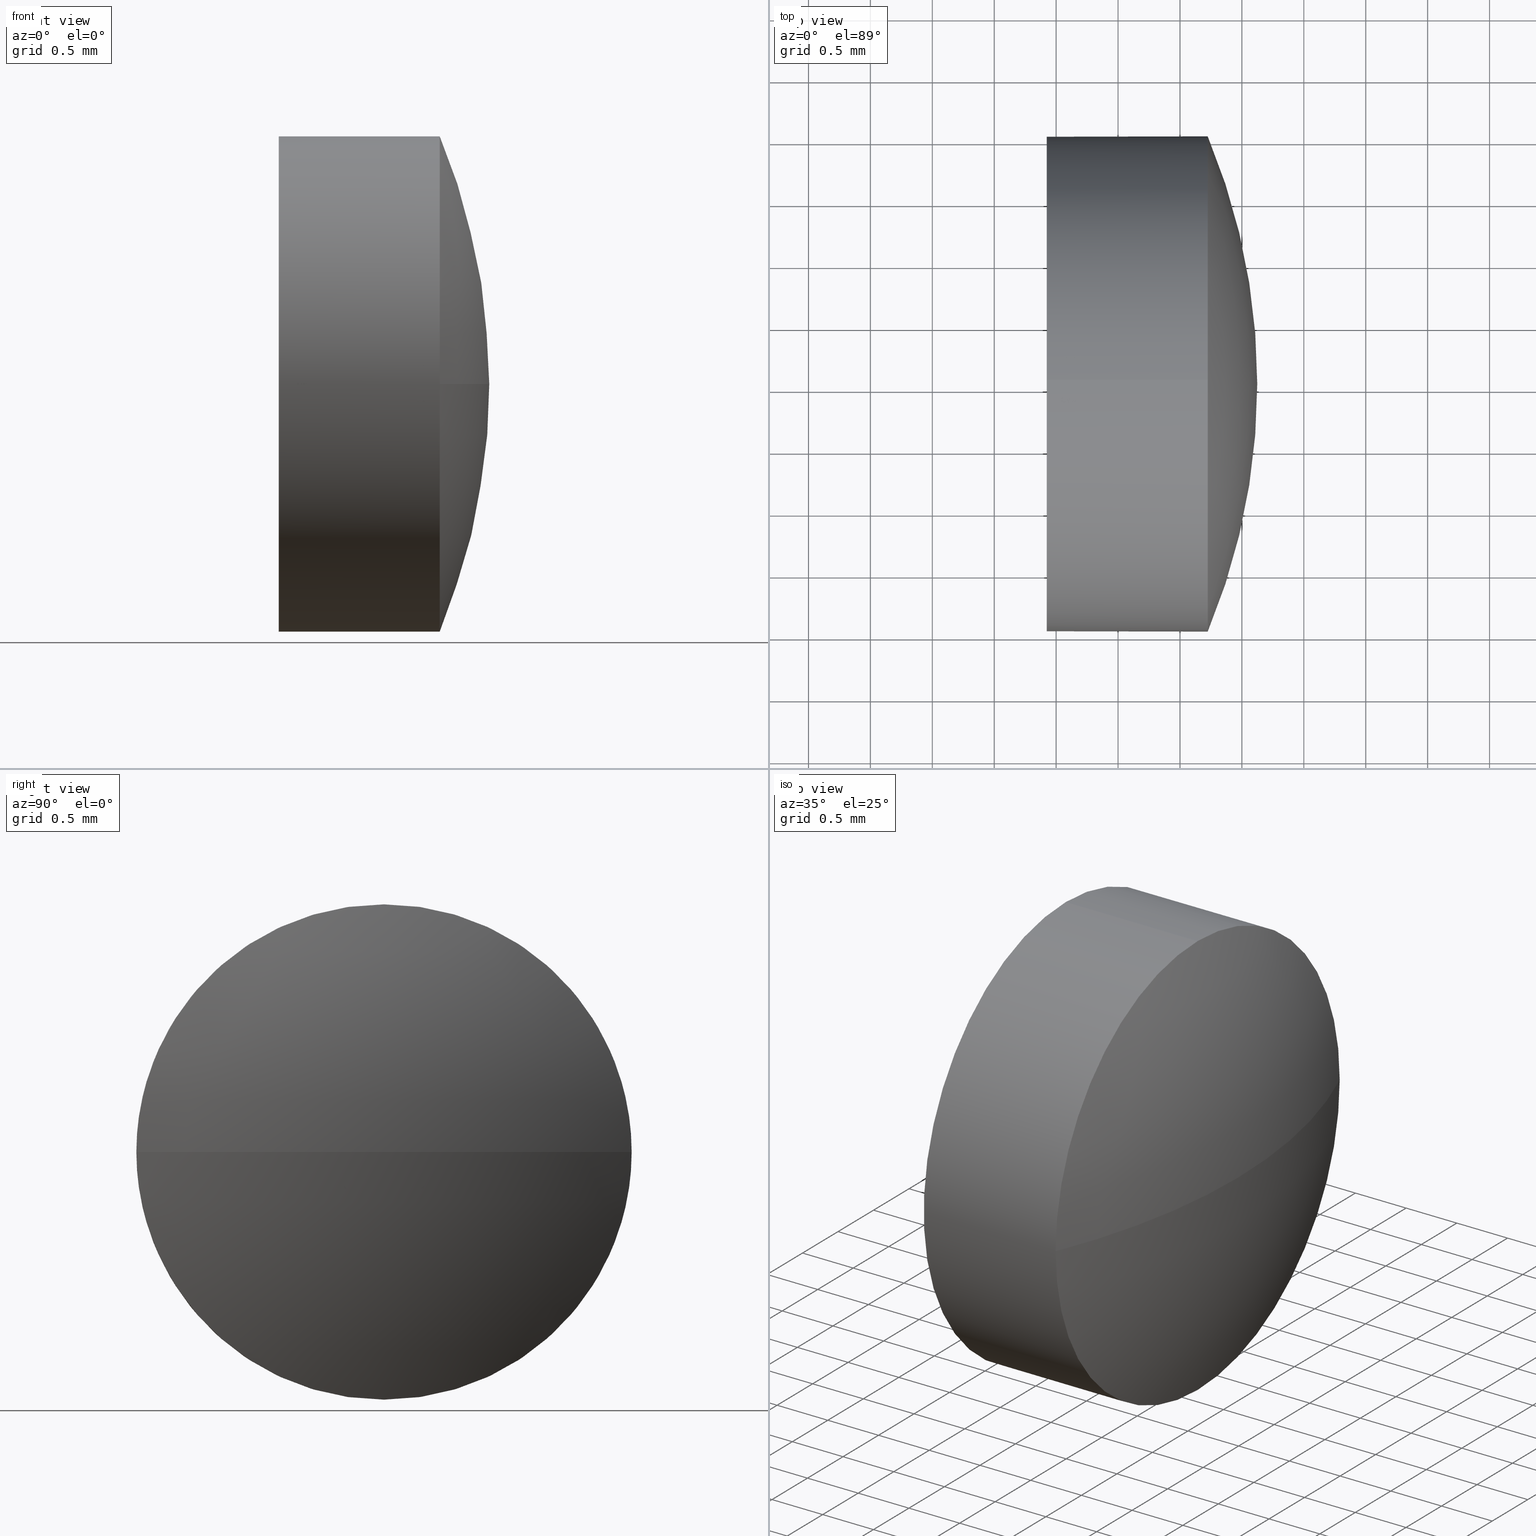
[diagram: canonical four-view strip — front | top / right | iso, engineering-drawing reading convention]
A machine part, canonical four-view strip (front | top / right | iso — engineering-drawing reading convention). The complete STEP part file that produces these views, byte-faithful:
ISO-10303-21;
HEADER;
FILE_DESCRIPTION (( 'STEP AP214' ),
    '1' );
FILE_NAME ('100004.STEP',
    '2019-04-19T01:17:19',
    ( '' ),
    ( '' ),
    'SwSTEP 2.0',
    'SolidWorks 2016',
    '' );
FILE_SCHEMA (( 'AUTOMOTIVE_DESIGN' ));
ENDSEC;

DATA;
#1 = AXIS2_PLACEMENT_3D ( 'NONE', #6, #10, #181 ) ;
#2 = ORIENTED_EDGE ( 'NONE', *, *, #26, .T. ) ;
#3 = PLANE ( 'NONE',  #116 ) ;
#4 = AXIS2_PLACEMENT_3D ( 'NONE', #65, #98, #161 ) ;
#5 = PRODUCT_DEFINITION ( 'δ֪', '', #17, #142 ) ;
#6 = CARTESIAN_POINT ( 'NONE',  ( 671.7241212514443300, 145.5310956935278200, 0.0000000000000000000 ) ) ;
#7 = CIRCLE ( 'NONE', #4, 5.199999999999898900 ) ;
#8 = DIRECTION ( 'NONE',  ( 0.0000000000000000000, 1.000000000000000000, 0.0000000000000000000 ) ) ;
#9 =( LENGTH_UNIT ( ) NAMED_UNIT ( * ) SI_UNIT ( .MILLI., .METRE. ) );
#10 = DIRECTION ( 'NONE',  ( -1.000000000000000000, -0.0000000000000000000, -0.0000000000000000000 ) ) ;
#11 = AXIS2_PLACEMENT_3D ( 'NONE', #130, #43, #118 ) ;
#12 = DIRECTION ( 'NONE',  ( -1.000000000000000000, -0.0000000000000000000, -0.0000000000000000000 ) ) ;
#13 =( GEOMETRIC_REPRESENTATION_CONTEXT ( 3 ) GLOBAL_UNCERTAINTY_ASSIGNED_CONTEXT ( ( #163 ) ) GLOBAL_UNIT_ASSIGNED_CONTEXT ( ( #50, #80, #184 ) ) REPRESENTATION_CONTEXT ( 'NONE', 'WORKASPACE' ) );
#14 = SURFACE_STYLE_FILL_AREA ( #62 ) ;
#15 = AXIS2_PLACEMENT_3D ( 'NONE', #165, #151, #8 ) ;
#16 = EDGE_LOOP ( 'NONE', ( #159, #2, #107, #23 ) ) ;
#17 = PRODUCT_DEFINITION_FORMATION_WITH_SPECIFIED_SOURCE ( '�κ�', '', #169, .NOT_KNOWN. ) ;
#18 = DIRECTION ( 'NONE',  ( -1.000000000000000000, -0.0000000000000000000, -0.0000000000000000000 ) ) ;
#19 = SPHERICAL_SURFACE ( 'NONE', #171, 5.199999999999887400 ) ;
#20 =( NAMED_UNIT ( * ) SI_UNIT ( $, .STERADIAN. ) SOLID_ANGLE_UNIT ( ) );
#21 = CARTESIAN_POINT ( 'NONE',  ( 671.7241212514443300, 143.5310956935279000, -2.449293598294682300E-016 ) ) ;
#22 = DIRECTION ( 'NONE',  ( -1.000000000000000000, -0.0000000000000000000, -0.0000000000000000000 ) ) ;
#23 = ORIENTED_EDGE ( 'NONE', *, *, #147, .F. ) ;
#24 = DIRECTION ( 'NONE',  ( -1.000000000000000000, -0.0000000000000000000, -0.0000000000000000000 ) ) ;
#25 = DIRECTION ( 'NONE',  ( 1.000000000000000000, 0.0000000000000000000, 0.0000000000000000000 ) ) ;
#26 = EDGE_CURVE ( 'NONE', #135, #71, #66, .T. ) ;
#27 = AXIS2_PLACEMENT_3D ( 'NONE', #146, #33, #141 ) ;
#28 = EDGE_LOOP ( 'NONE', ( #52, #170, #125, #172, #30 ) ) ;
#29 = PRESENTATION_STYLE_ASSIGNMENT (( #134 ) ) ;
#30 = ORIENTED_EDGE ( 'NONE', *, *, #57, .F. ) ;
#31 = CARTESIAN_POINT ( 'NONE',  ( 670.2757176332884200, 145.5310956935278200, -2.000000000000001800 ) ) ;
#32 = ORIENTED_EDGE ( 'NONE', *, *, #73, .T. ) ;
#33 = DIRECTION ( 'NONE',  ( -1.000000000000000000, -0.0000000000000000000, -0.0000000000000000000 ) ) ;
#34 = ADVANCED_BREP_SHAPE_REPRESENTATION ( '100004', ( #105, #53 ), #87 ) ;
#35 = CARTESIAN_POINT ( 'NONE',  ( 671.7241212514443300, 145.5310956935278200, 2.000000000000001800 ) ) ;
#36 = ADVANCED_FACE ( 'NONE', ( #183 ), #3, .F. ) ;
#37 = FILL_AREA_STYLE ('',( #51 ) ) ;
#38 = SURFACE_SIDE_STYLE ('',( #140 ) ) ;
#39 = ORIENTED_EDGE ( 'NONE', *, *, #101, .T. ) ;
#40 = CIRCLE ( 'NONE', #155, 2.000000000000001800 ) ;
#41 = SPHERICAL_SURFACE ( 'NONE', #15, 5.199999999999887400 ) ;
#42 = DIRECTION ( 'NONE',  ( -0.0000000000000000000, 0.0000000000000000000, 1.000000000000000000 ) ) ;
#43 = DIRECTION ( 'NONE',  ( -1.000000000000000000, -0.0000000000000000000, -0.0000000000000000000 ) ) ;
#44 = AXIS2_PLACEMENT_3D ( 'NONE', #110, #24, #160 ) ;
#45 = CIRCLE ( 'NONE', #185, 2.000000000000001800 ) ;
#46 = CARTESIAN_POINT ( 'NONE',  ( 670.4241212514442600, 147.5310956935278200, 0.0000000000000000000 ) ) ;
#47 = CARTESIAN_POINT ( 'NONE',  ( 670.4241212514442600, 145.5310956935278200, -2.000000000000001800 ) ) ;
#48 =( NAMED_UNIT ( * ) SI_UNIT ( $, .STERADIAN. ) SOLID_ANGLE_UNIT ( ) );
#49 = COLOUR_RGB ( '',1.000000000000000000, 1.000000000000000000, 1.000000000000000000 ) ;
#50 =( LENGTH_UNIT ( ) NAMED_UNIT ( * ) SI_UNIT ( .MILLI., .METRE. ) );
#51 = FILL_AREA_STYLE_COLOUR ( '', #106 ) ;
#52 = ORIENTED_EDGE ( 'NONE', *, *, #73, .F. ) ;
#53 = AXIS2_PLACEMENT_3D ( 'NONE', #119, #114, #25 ) ;
#54 = ADVANCED_FACE ( 'NONE', ( #127 ), #19, .T. ) ;
#55 = LINE ( 'NONE', #31, #56 ) ;
#56 = VECTOR ( 'NONE', #18, 1000.000000000000000 ) ;
#57 = EDGE_CURVE ( 'NONE', #76, #59, #97, .T. ) ;
#58 = DIRECTION ( 'NONE',  ( 0.0000000000000000000, 0.0000000000000000000, -1.000000000000000000 ) ) ;
#59 = VERTEX_POINT ( 'NONE', #179 ) ;
#60 = DIRECTION ( 'NONE',  ( 1.000000000000000000, 0.0000000000000000000, 0.0000000000000000000 ) ) ;
#61 = EDGE_CURVE ( 'NONE', #59, #76, #45, .T. ) ;
#62 = FILL_AREA_STYLE ('',( #175 ) ) ;
#63 =( NAMED_UNIT ( * ) PLANE_ANGLE_UNIT ( ) SI_UNIT ( $, .RADIAN. ) );
#64 = CIRCLE ( 'NONE', #1, 2.000000000000001800 ) ;
#65 = CARTESIAN_POINT ( 'NONE',  ( 666.9241212514443800, 145.5310956935278700, 0.0000000000000000000 ) ) ;
#66 = CIRCLE ( 'NONE', #139, 5.199999999999871400 ) ;
#67 = SURFACE_STYLE_USAGE ( .BOTH. , #162 ) ;
#68 = APPLICATION_PROTOCOL_DEFINITION ( 'draft international standard', 'automotive_design', 1998, #153 ) ;
#69 = EDGE_LOOP ( 'NONE', ( #88, #117 ) ) ;
#70 = UNCERTAINTY_MEASURE_WITH_UNIT (LENGTH_MEASURE( 1.000000000000000100E-005 ), #137, 'distance_accuracy_value', 'NONE');
#71 = VERTEX_POINT ( 'NONE', #128 ) ;
#72 = ORIENTED_EDGE ( 'NONE', *, *, #26, .F. ) ;
#73 = EDGE_CURVE ( 'NONE', #108, #76, #55, .T. ) ;
#74 = CIRCLE ( 'NONE', #126, 2.000000000000001800 ) ;
#75 = DIRECTION ( 'NONE',  ( 1.000000000000000000, 0.0000000000000000000, 0.0000000000000000000 ) ) ;
#76 = VERTEX_POINT ( 'NONE', #47 ) ;
#77 = DIRECTION ( 'NONE',  ( -1.000000000000000000, -0.0000000000000000000, -0.0000000000000000000 ) ) ;
#78 = DIRECTION ( 'NONE',  ( 0.0000000000000000000, 1.000000000000000000, 0.0000000000000000000 ) ) ;
#79 =( NAMED_UNIT ( * ) PLANE_ANGLE_UNIT ( ) SI_UNIT ( $, .RADIAN. ) );
#80 =( NAMED_UNIT ( * ) PLANE_ANGLE_UNIT ( ) SI_UNIT ( $, .RADIAN. ) );
#81 = CLOSED_SHELL ( 'NONE', ( #99, #90, #133, #36, #54 ) ) ;
#82 = PRODUCT_CONTEXT ( 'NONE', #149, 'mechanical' ) ;
#83 = PRESENTATION_STYLE_ASSIGNMENT (( #67 ) ) ;
#84 = EDGE_LOOP ( 'NONE', ( #72, #39, #174, #113 ) ) ;
#85 = EDGE_CURVE ( 'NONE', #156, #59, #92, .T. ) ;
#86 = PRODUCT_DEFINITION_SHAPE ( 'NONE', 'NONE',  #5 ) ;
#87 =( GEOMETRIC_REPRESENTATION_CONTEXT ( 3 ) GLOBAL_UNCERTAINTY_ASSIGNED_CONTEXT ( ( #70 ) ) GLOBAL_UNIT_ASSIGNED_CONTEXT ( ( #137, #79, #48 ) ) REPRESENTATION_CONTEXT ( 'NONE', 'WORKASPACE' ) );
#88 = ORIENTED_EDGE ( 'NONE', *, *, #61, .T. ) ;
#89 = DIRECTION ( 'NONE',  ( -1.000000000000000000, -0.0000000000000000000, -0.0000000000000000000 ) ) ;
#90 = ADVANCED_FACE ( 'NONE', ( #124 ), #120, .T. ) ;
#91 = CARTESIAN_POINT ( 'NONE',  ( 670.2757176332884200, 145.5310956935278200, 2.000000000000001800 ) ) ;
#92 = LINE ( 'NONE', #91, #154 ) ;
#93 = CARTESIAN_POINT ( 'NONE',  ( 671.7241212514443300, 145.5310956935278200, 0.0000000000000000000 ) ) ;
#94 = APPLICATION_PROTOCOL_DEFINITION ( 'draft international standard', 'automotive_design', 1998, #149 ) ;
#95 = DIRECTION ( 'NONE',  ( 0.0000000000000000000, 0.0000000000000000000, 1.000000000000000000 ) ) ;
#96 = CARTESIAN_POINT ( 'NONE',  ( 671.7241212514443300, 145.5310956935278200, 0.0000000000000000000 ) ) ;
#97 = CIRCLE ( 'NONE', #11, 2.000000000000001800 ) ;
#98 = DIRECTION ( 'NONE',  ( 0.0000000000000000000, 1.224646799147353200E-016, -1.000000000000000000 ) ) ;
#99 = ADVANCED_FACE ( 'NONE', ( #157 ), #41, .T. ) ;
#100 = ORIENTED_EDGE ( 'NONE', *, *, #61, .F. ) ;
#101 = EDGE_CURVE ( 'NONE', #135, #178, #7, .T. ) ;
#102 = ORIENTED_EDGE ( 'NONE', *, *, #85, .F. ) ;
#103 = PRESENTATION_LAYER_ASSIGNMENT (  '', '', ( #166 ) ) ;
#104 = EDGE_LOOP ( 'NONE', ( #138, #129, #32, #100, #102 ) ) ;
#105 = MANIFOLD_SOLID_BREP ( '��ת1', #81 ) ;
#106 = COLOUR_RGB ( '',1.000000000000000000, 1.000000000000000000, 1.000000000000000000 ) ;
#107 = ORIENTED_EDGE ( 'NONE', *, *, #109, .F. ) ;
#108 = VERTEX_POINT ( 'NONE', #111 ) ;
#109 = EDGE_CURVE ( 'NONE', #156, #71, #186, .T. ) ;
#110 = CARTESIAN_POINT ( 'NONE',  ( 671.7241212514443300, 145.5310956935278200, 0.0000000000000000000 ) ) ;
#111 = CARTESIAN_POINT ( 'NONE',  ( 671.7241212514443300, 145.5310956935278200, -2.000000000000001800 ) ) ;
#112 = STYLED_ITEM ( 'NONE', ( #83 ), #105 ) ;
#113 = ORIENTED_EDGE ( 'NONE', *, *, #168, .F. ) ;
#114 = DIRECTION ( 'NONE',  ( 0.0000000000000000000, 0.0000000000000000000, 1.000000000000000000 ) ) ;
#115 = PRODUCT_RELATED_PRODUCT_CATEGORY ( 'part', '', ( #169 ) ) ;
#116 = AXIS2_PLACEMENT_3D ( 'NONE', #46, #75, #58 ) ;
#117 = ORIENTED_EDGE ( 'NONE', *, *, #57, .T. ) ;
#118 = DIRECTION ( 'NONE',  ( 0.0000000000000000000, 0.0000000000000000000, 1.000000000000000000 ) ) ;
#119 = CARTESIAN_POINT ( 'NONE',  ( 0.0000000000000000000, 0.0000000000000000000, 0.0000000000000000000 ) ) ;
#120 = CYLINDRICAL_SURFACE ( 'NONE', #27, 2.000000000000001800 ) ;
#121 = CARTESIAN_POINT ( 'NONE',  ( 672.1241212514443100, 145.5310956935278700, 0.0000000000000000000 ) ) ;
#122 = DIRECTION ( 'NONE',  ( -1.000000000000000000, -0.0000000000000000000, -0.0000000000000000000 ) ) ;
#123 = DIRECTION ( 'NONE',  ( 0.0000000000000000000, 0.0000000000000000000, 1.000000000000000000 ) ) ;
#124 = FACE_OUTER_BOUND ( 'NONE', #104, .T. ) ;
#125 = ORIENTED_EDGE ( 'NONE', *, *, #147, .T. ) ;
#126 = AXIS2_PLACEMENT_3D ( 'NONE', #96, #122, #123 ) ;
#127 = FACE_OUTER_BOUND ( 'NONE', #16, .T. ) ;
#128 = CARTESIAN_POINT ( 'NONE',  ( 671.7241212514443300, 147.5310956935277900, 0.0000000000000000000 ) ) ;
#129 = ORIENTED_EDGE ( 'NONE', *, *, #168, .T. ) ;
#130 = CARTESIAN_POINT ( 'NONE',  ( 670.4241212514442600, 145.5310956935278200, 0.0000000000000000000 ) ) ;
#131 = CARTESIAN_POINT ( 'NONE',  ( 666.9241212514443800, 145.5310956935278700, 0.0000000000000000000 ) ) ;
#132 = CARTESIAN_POINT ( 'NONE',  ( 666.9241212514443800, 145.5310956935278700, 0.0000000000000000000 ) ) ;
#133 = ADVANCED_FACE ( 'NONE', ( #148 ), #167, .T. ) ;
#134 = SURFACE_STYLE_USAGE ( .BOTH. , #38 ) ;
#135 = VERTEX_POINT ( 'NONE', #121 ) ;
#136 = PRESENTATION_LAYER_ASSIGNMENT (  '', '', ( #112 ) ) ;
#137 =( LENGTH_UNIT ( ) NAMED_UNIT ( * ) SI_UNIT ( .MILLI., .METRE. ) );
#138 = ORIENTED_EDGE ( 'NONE', *, *, #109, .T. ) ;
#139 = AXIS2_PLACEMENT_3D ( 'NONE', #131, #42, #60 ) ;
#140 = SURFACE_STYLE_FILL_AREA ( #37 ) ;
#141 = DIRECTION ( 'NONE',  ( 0.0000000000000000000, 0.0000000000000000000, 1.000000000000000000 ) ) ;
#142 = PRODUCT_DEFINITION_CONTEXT ( 'detailed design', #153, 'design' ) ;
#143 = MECHANICAL_DESIGN_GEOMETRIC_PRESENTATION_REPRESENTATION (  '', ( #112 ), #164 ) ;
#144 = DIRECTION ( 'NONE',  ( 0.0000000000000000000, 0.0000000000000000000, 1.000000000000000000 ) ) ;
#145 = AXIS2_PLACEMENT_3D ( 'NONE', #152, #22, #182 ) ;
#146 = CARTESIAN_POINT ( 'NONE',  ( 670.2757176332884200, 145.5310956935278200, 0.0000000000000000000 ) ) ;
#147 = EDGE_CURVE ( 'NONE', #178, #156, #40, .T. ) ;
#148 = FACE_OUTER_BOUND ( 'NONE', #28, .T. ) ;
#149 = APPLICATION_CONTEXT ( 'automotive_design' ) ;
#150 = SHAPE_DEFINITION_REPRESENTATION ( #86, #34 ) ;
#151 = DIRECTION ( 'NONE',  ( -0.0000000000000000000, 0.0000000000000000000, -1.000000000000000000 ) ) ;
#152 = CARTESIAN_POINT ( 'NONE',  ( 670.2757176332884200, 145.5310956935278200, 0.0000000000000000000 ) ) ;
#153 = APPLICATION_CONTEXT ( 'automotive_design' ) ;
#154 = VECTOR ( 'NONE', #77, 1000.000000000000000 ) ;
#155 = AXIS2_PLACEMENT_3D ( 'NONE', #93, #12, #95 ) ;
#156 = VERTEX_POINT ( 'NONE', #35 ) ;
#157 = FACE_OUTER_BOUND ( 'NONE', #84, .T. ) ;
#158 = CARTESIAN_POINT ( 'NONE',  ( 670.4241212514442600, 145.5310956935278200, 0.0000000000000000000 ) ) ;
#159 = ORIENTED_EDGE ( 'NONE', *, *, #101, .F. ) ;
#160 = DIRECTION ( 'NONE',  ( 0.0000000000000000000, 0.0000000000000000000, 1.000000000000000000 ) ) ;
#161 = DIRECTION ( 'NONE',  ( 0.0000000000000000000, 1.000000000000000000, 1.224646799147350500E-016 ) ) ;
#162 = SURFACE_SIDE_STYLE ('',( #14 ) ) ;
#163 = UNCERTAINTY_MEASURE_WITH_UNIT (LENGTH_MEASURE( 1.000000000000000100E-005 ), #50, 'distance_accuracy_value', 'NONE');
#164 =( GEOMETRIC_REPRESENTATION_CONTEXT ( 3 ) GLOBAL_UNCERTAINTY_ASSIGNED_CONTEXT ( ( #173 ) ) GLOBAL_UNIT_ASSIGNED_CONTEXT ( ( #9, #63, #20 ) ) REPRESENTATION_CONTEXT ( 'NONE', 'WORKASPACE' ) );
#165 = CARTESIAN_POINT ( 'NONE',  ( 666.9241212514443800, 145.5310956935278700, 0.0000000000000000000 ) ) ;
#166 = STYLED_ITEM ( 'NONE', ( #29 ), #34 ) ;
#167 = CYLINDRICAL_SURFACE ( 'NONE', #145, 2.000000000000001800 ) ;
#168 = EDGE_CURVE ( 'NONE', #71, #108, #74, .T. ) ;
#169 = PRODUCT ( '100004', '100004', '', ( #82 ) ) ;
#170 = ORIENTED_EDGE ( 'NONE', *, *, #180, .T. ) ;
#171 = AXIS2_PLACEMENT_3D ( 'NONE', #132, #177, #78 ) ;
#172 = ORIENTED_EDGE ( 'NONE', *, *, #85, .T. ) ;
#173 = UNCERTAINTY_MEASURE_WITH_UNIT (LENGTH_MEASURE( 1.000000000000000100E-005 ), #9, 'distance_accuracy_value', 'NONE');
#174 = ORIENTED_EDGE ( 'NONE', *, *, #180, .F. ) ;
#175 = FILL_AREA_STYLE_COLOUR ( '', #49 ) ;
#176 = MECHANICAL_DESIGN_GEOMETRIC_PRESENTATION_REPRESENTATION (  '', ( #166 ), #13 ) ;
#177 = DIRECTION ( 'NONE',  ( -0.0000000000000000000, 0.0000000000000000000, -1.000000000000000000 ) ) ;
#178 = VERTEX_POINT ( 'NONE', #21 ) ;
#179 = CARTESIAN_POINT ( 'NONE',  ( 670.4241212514442600, 145.5310956935278200, 2.000000000000001800 ) ) ;
#180 = EDGE_CURVE ( 'NONE', #108, #178, #64, .T. ) ;
#181 = DIRECTION ( 'NONE',  ( 0.0000000000000000000, 0.0000000000000000000, 1.000000000000000000 ) ) ;
#182 = DIRECTION ( 'NONE',  ( 0.0000000000000000000, 0.0000000000000000000, 1.000000000000000000 ) ) ;
#183 = FACE_OUTER_BOUND ( 'NONE', #69, .T. ) ;
#184 =( NAMED_UNIT ( * ) SI_UNIT ( $, .STERADIAN. ) SOLID_ANGLE_UNIT ( ) );
#185 = AXIS2_PLACEMENT_3D ( 'NONE', #158, #89, #144 ) ;
#186 = CIRCLE ( 'NONE', #44, 2.000000000000001800 ) ;
ENDSEC;
END-ISO-10303-21;
